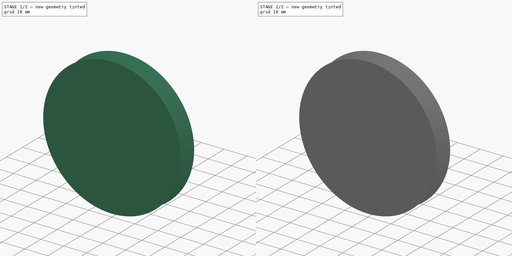
[diagram: build sequence overview — one tinted view per stage of 2, left to right]
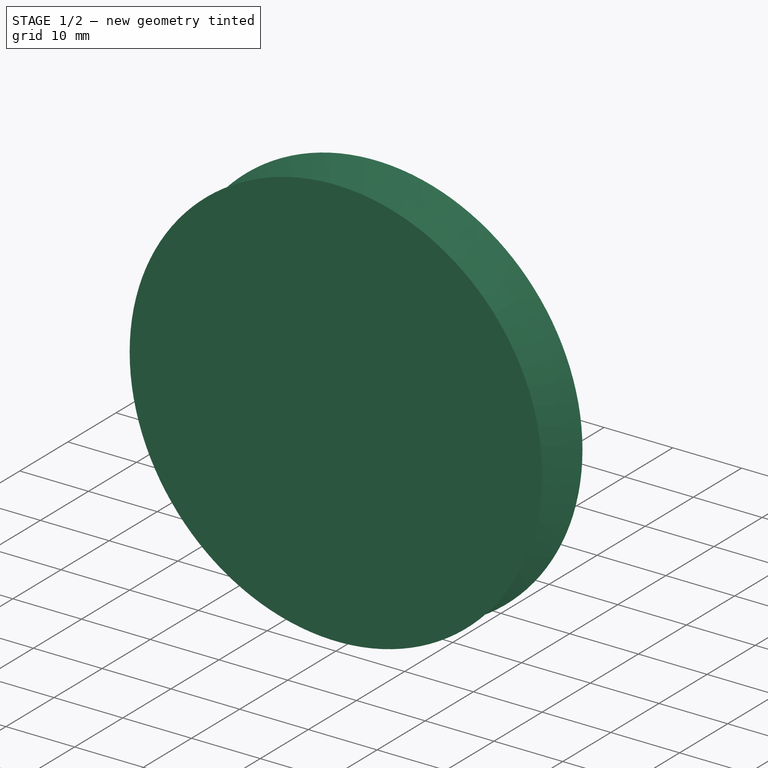
[diagram: stage 1 of 2 — iso view after this stage's code; geometry added in this stage tinted green]
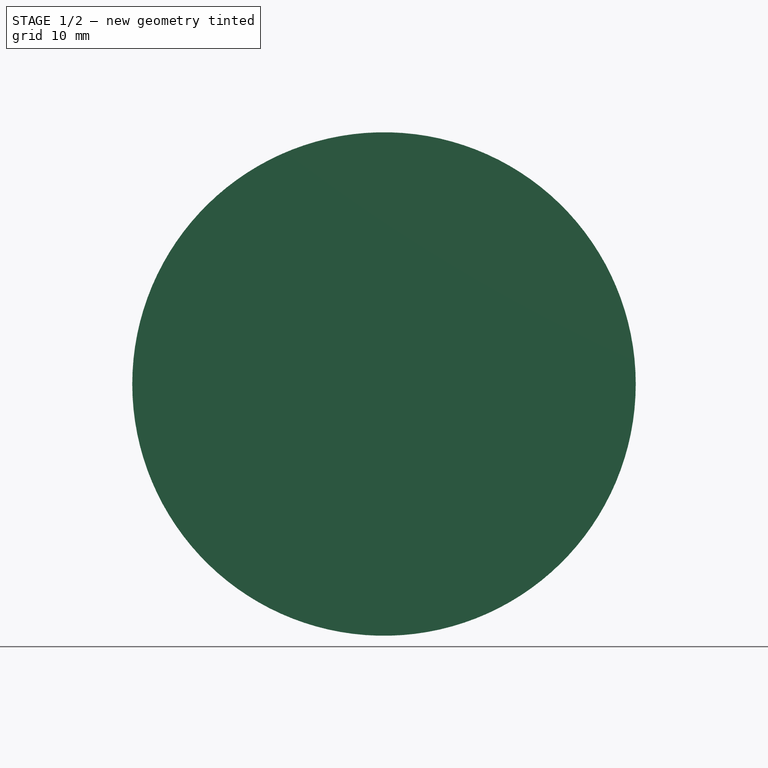
[diagram: stage 1 of 2 — front view after this stage's code; geometry added in this stage tinted green]
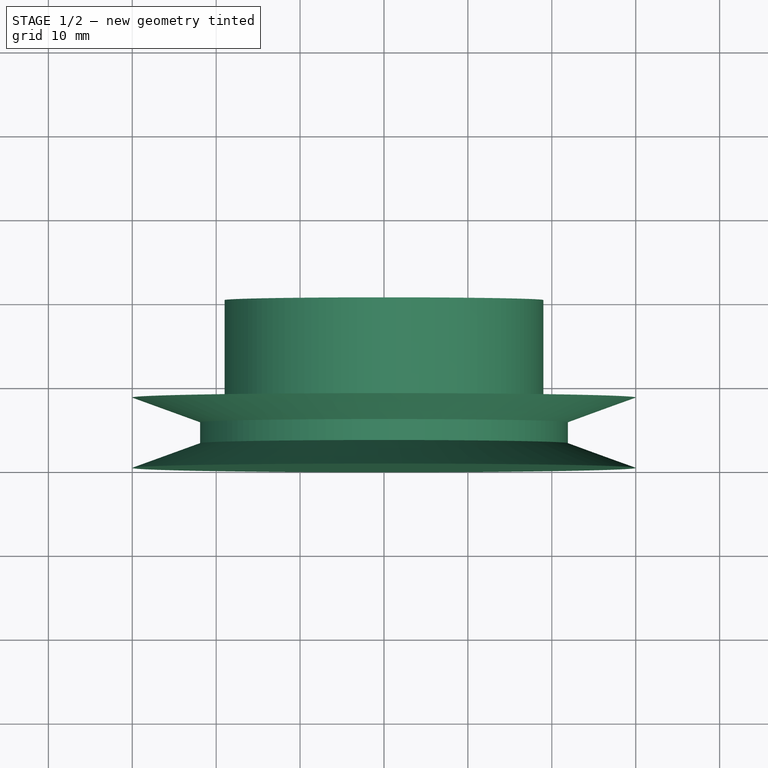
[diagram: stage 1 of 2 — top view after this stage's code; geometry added in this stage tinted green]
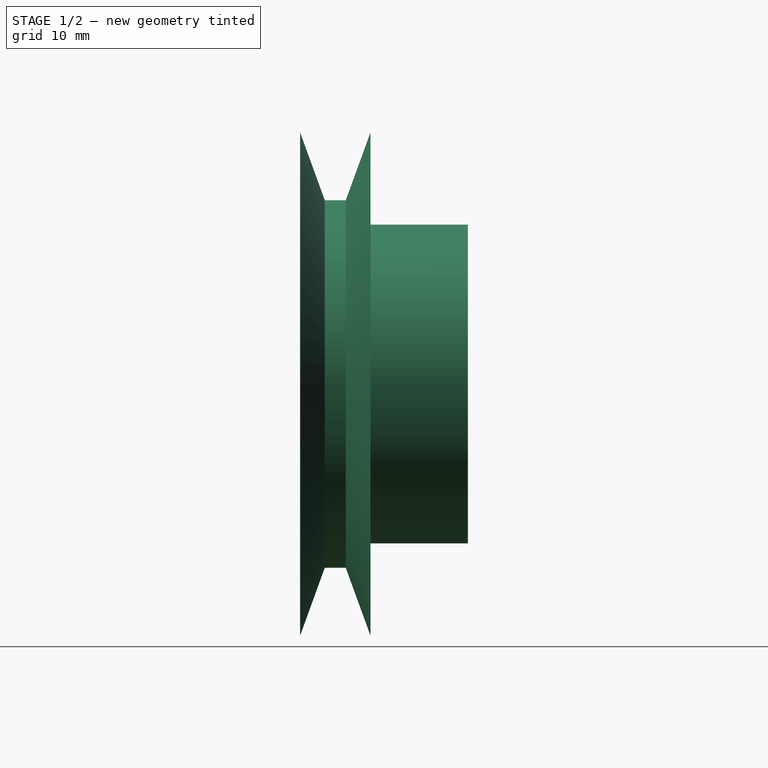
[diagram: stage 1 of 2 — right view after this stage's code; geometry added in this stage tinted green]
FCSTD DOCUMENT  (FreeCAD 0.18R16110 (Git))
Label: pulley60m
License: All rights reserved
LicenseURL: http://en.wikipedia.org/wiki/All_rights_reserved
objects: Sketcher::SketchObject×3, PartDesign::Revolution×1, PartDesign::Pocket×1, PartDesign::Body×1
note: 8 computed .brp shape members not serialized (recipe doc carries the construction recipe); baked Part::Feature solids carry a one-line shape summary decoded from their .brp

FEATURE [Sketcher::SketchObject] Sketch
  sketch-geometry (8):
    g0: LineSegment StartX=0 StartY=20 StartZ=0 EndX=19 EndY=20 EndZ=0
    g1: LineSegment StartX=19 StartY=20 StartZ=0 EndX=19 EndY=8.38959 EndZ=0
    g2: LineSegment StartX=19 StartY=8.38959 StartZ=0 EndX=60 EndY=8.38959 EndZ=0
    g3: LineSegment StartX=60 StartY=8.38959 StartZ=0 EndX=51.9092 EndY=5.44479 EndZ=0
    g4: LineSegment StartX=51.9092 StartY=5.44479 StartZ=0 EndX=51.9092 EndY=2.94479 EndZ=0
    g5: LineSegment StartX=51.9092 StartY=2.94479 StartZ=0 EndX=60 EndY=0 EndZ=0
    g6: LineSegment StartX=60 StartY=0 StartZ=0 EndX=0 EndY=0 EndZ=0
    g7: LineSegment StartX=0 StartY=20 StartZ=0 EndX=0 EndY=0 EndZ=0
  constraints (24):
    c: PointOnObject(g6,g-1)
    c: Horizontal(g0)
    c: Coincident(g0,g1)
    c: Vertical(g1)
    c: Coincident(g1,g2)
    c: Horizontal(g2)
    c: Coincident(g2,g3)
    c: Coincident(g3,g4)
    c: Vertical(g4)
    c: Coincident(g4,g5)
    c: PointOnObject(g5,g-1)
    c: Coincident(g5,g6)
    c: Distance(g4) = 2.5
    c: Equal(g5,g3)
    c: Distance(g5) = 8.61
    c: Angle(g5,g3) = 0.698132
    c: Angle(g2,g3) = 0.349066
    c: DistanceX(g5) = 60
    c: DistanceX(g6) = 0
    c: DistanceX(g0) = 0
    c: Coincident(g7,g0)
    c: Coincident(g7,g6)
    c: DistanceX(g0) = 19
    c: DistanceY(g0) = 20
FEATURE [Sketcher::SketchObject] CopySketch
  sketch-geometry (8):
    g0: LineSegment StartX=0 StartY=20 StartZ=0 EndX=19 EndY=20 EndZ=0
    g1: LineSegment StartX=19 StartY=20 StartZ=0 EndX=19 EndY=8.38959 EndZ=0
    g2: LineSegment StartX=19 StartY=8.38959 StartZ=0 EndX=30 EndY=8.38959 EndZ=0
    g3: LineSegment StartX=30 StartY=8.38959 StartZ=0 EndX=21.9092 EndY=5.44479 EndZ=0
    g4: LineSegment StartX=21.9092 StartY=5.44479 StartZ=0 EndX=21.9092 EndY=2.94479 EndZ=0
    g5: LineSegment StartX=21.9092 StartY=2.94479 StartZ=0 EndX=30 EndY=0 EndZ=0
    g6: LineSegment StartX=30 StartY=0 StartZ=0 EndX=0 EndY=0 EndZ=0
    g7: LineSegment StartX=0 StartY=20 StartZ=0 EndX=0 EndY=0 EndZ=0
  constraints (24):
    c: PointOnObject(g6,g-1)
    c: Horizontal(g0)
    c: Coincident(g0,g1)
    c: Vertical(g1)
    c: Coincident(g1,g2)
    c: Horizontal(g2)
    c: Coincident(g2,g3)
    c: Coincident(g3,g4)
    c: Vertical(g4)
    c: Coincident(g4,g5)
    c: PointOnObject(g5,g-1)
    c: Coincident(g5,g6)
    c: Distance(g4) = 2.5
    c: Equal(g5,g3)
    c: Distance(g5) = 8.61
    c: Angle(g5,g3) = 0.698132
    c: Angle(g2,g3) = 0.349066
    c: DistanceX(g5) = 30
    c: DistanceX(g6) = 0
    c: DistanceX(g0) = 0
    c: Coincident(g7,g0)
    c: Coincident(g7,g6)
    c: DistanceX(g0) = 19
    c: DistanceY(g0) = 20
FEATURE [PartDesign::Revolution] Revolution
  Angle = 360
  Axis = (0,1,0)
  Base = (0,0,0)
  Profile = -> CopySketch
  ReferenceAxis = -> CopySketch [V_Axis]
  Reversed = true
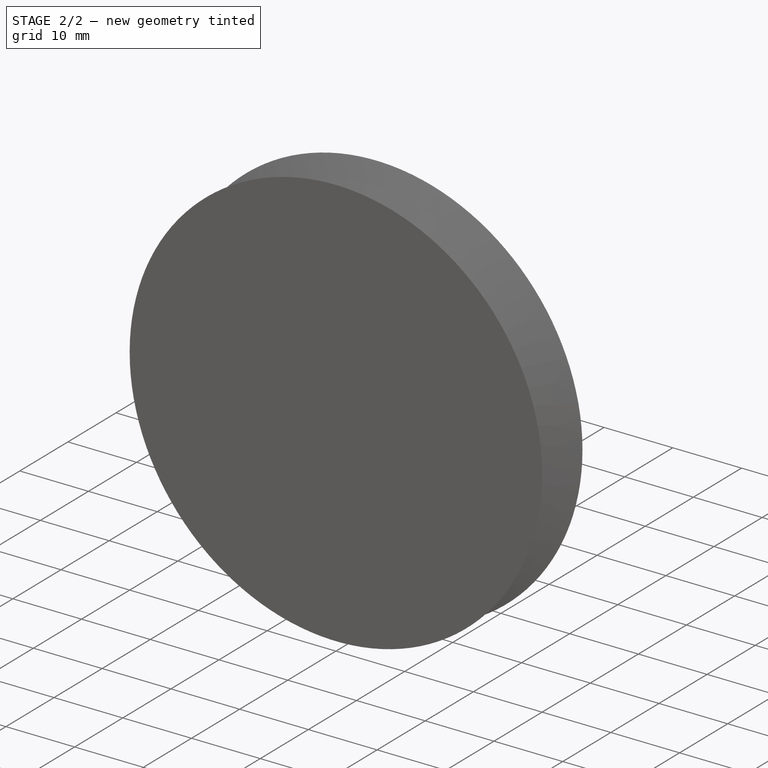
[diagram: stage 2 of 2 — iso view after this stage's code; geometry added in this stage tinted green]
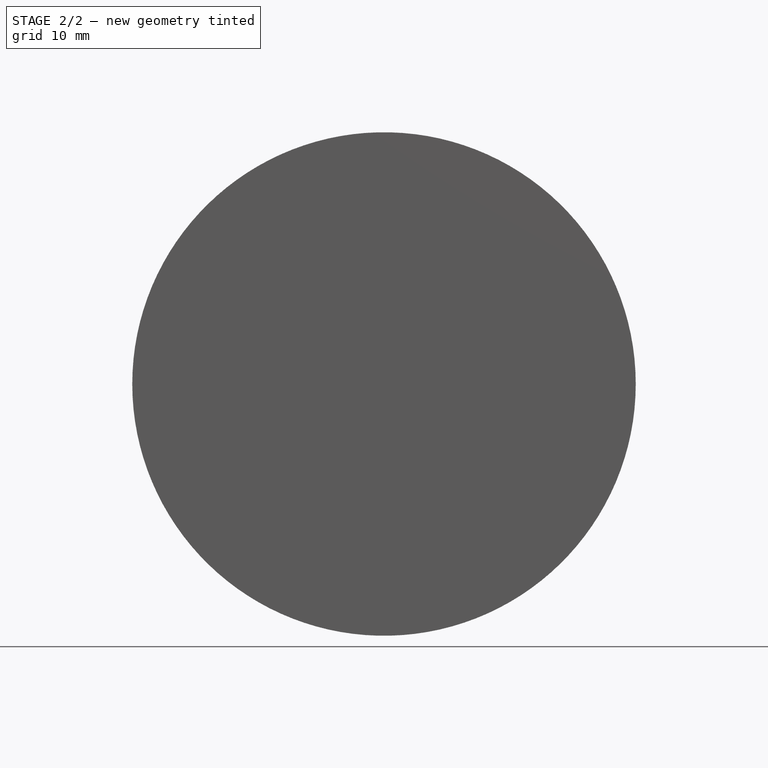
[diagram: stage 2 of 2 — front view after this stage's code; geometry added in this stage tinted green]
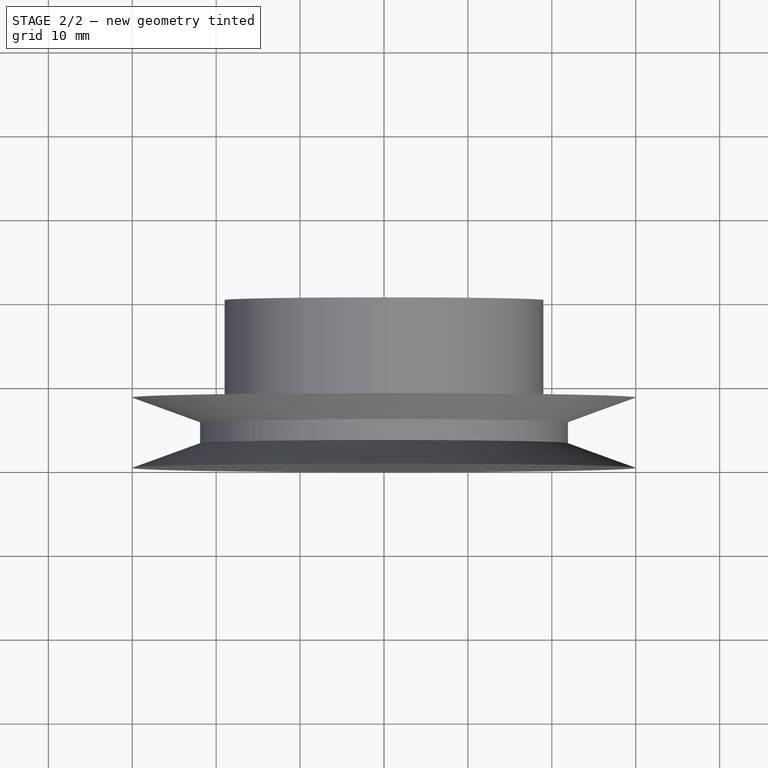
[diagram: stage 2 of 2 — top view after this stage's code; geometry added in this stage tinted green]
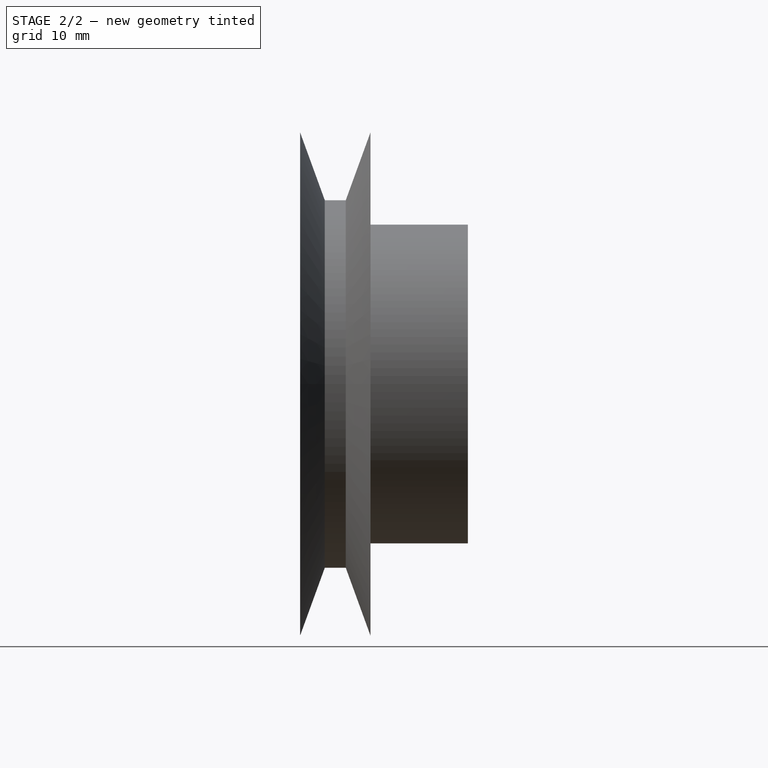
[diagram: stage 2 of 2 — right view after this stage's code; geometry added in this stage tinted green]
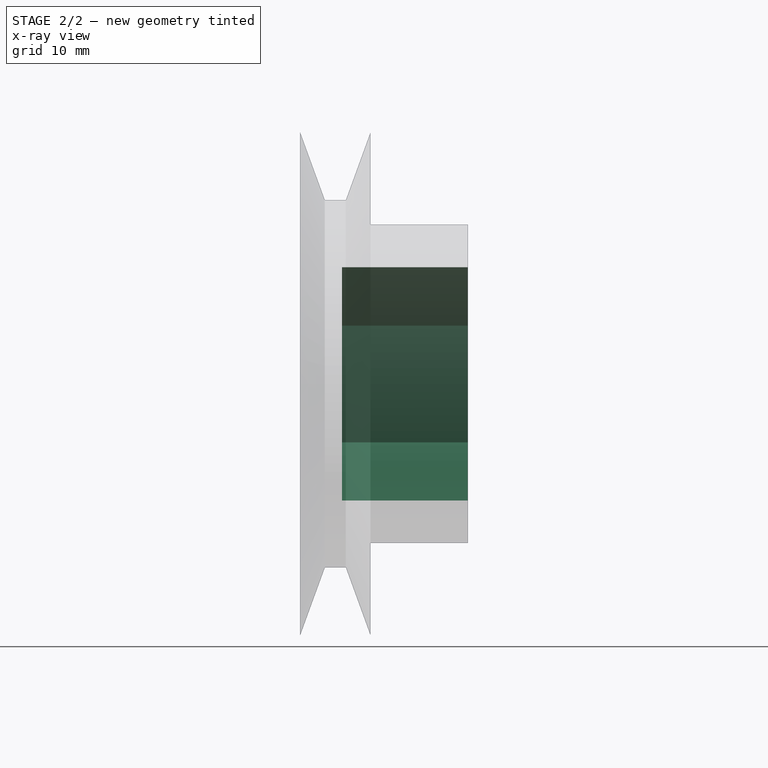
[diagram: stage 2 of 2 — x-ray composite at the right view; earlier geometry ghosted, this stage's added geometry solid]
FEATURE [Sketcher::SketchObject] Sketch002
  MapMode = 5
  Placement = pos=(0,20,0) rot=(0,0.707107,0.707107;3.14159rad)
  sketch-geometry (7):
    g0: LineSegment StartX=0 StartY=13.9141 StartZ=0 EndX=-12.05 EndY=6.95707 EndZ=0
    g1: LineSegment StartX=-12.05 StartY=6.95707 StartZ=0 EndX=-12.05 EndY=-6.95707 EndZ=0
    g2: LineSegment StartX=-12.05 StartY=-6.95707 StartZ=0 EndX=-1.8e-15 EndY=-13.9141 EndZ=0
    g3: LineSegment StartX=-1.8e-15 StartY=-13.9141 StartZ=0 EndX=12.05 EndY=-6.95707 EndZ=0
    g4: LineSegment StartX=12.05 StartY=-6.95707 StartZ=0 EndX=12.05 EndY=6.95707 EndZ=0
    g5: LineSegment StartX=12.05 StartY=6.95707 StartZ=0 EndX=0 EndY=13.9141 EndZ=0
    g6: Circle [constr] CenterX=0 CenterY=0 CenterZ=0 NormalX=0 NormalY=0 NormalZ=1 AngleXU=0 Radius=13.9141
  constraints (16):
    c: Coincident(g0,g1)
    c: Coincident(g1,g2)
    c: Coincident(g2,g3)
    c: Coincident(g3,g4)
    c: Coincident(g4,g5)
    c: Coincident(g5,g0)
    c: Equal(g0, g1-g5) x5
    c: PointOnObject(g0,g6)
    c: PointOnObject(g1,g6)
    c: PointOnObject(g2,g6)
    c: PointOnObject(g3,g6)
    c: PointOnObject(g4,g6)
    c: PointOnObject(g5,g6)
    c: Coincident(g6,g-1)
    c: PointOnObject(g5,g-2)
    c: DistanceX(g4) = 12.05
FEATURE [PartDesign::Pocket] Pocket
  BaseFeature = -> Revolution
  Length = 15
  Length2 = 100
  Profile = -> Sketch002
  Type = 0
FEATURE [PartDesign::Body] Body
  Group = -> [Revolution,Sketch002,Pocket]
  Origin = -> Origin
  Tip = -> Pocket
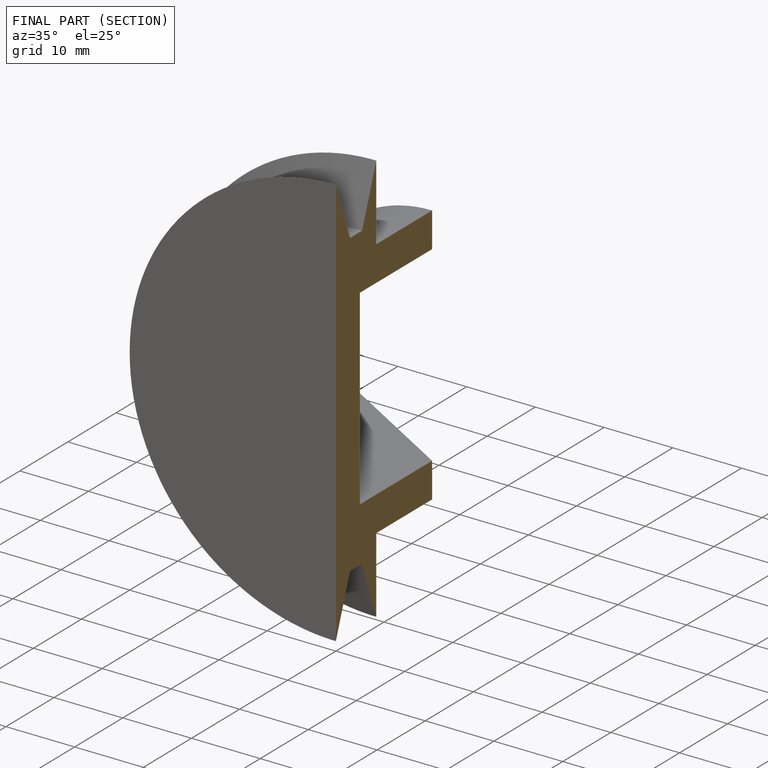
[diagram: finished part — half-section view (interior)]
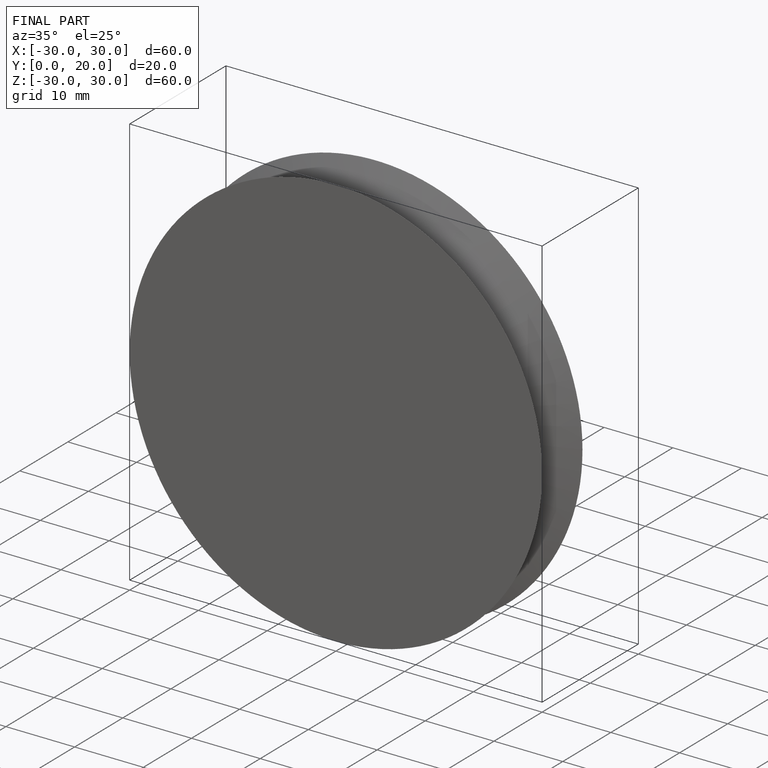
[diagram: finished part — iso view with bounding-box wireframe]
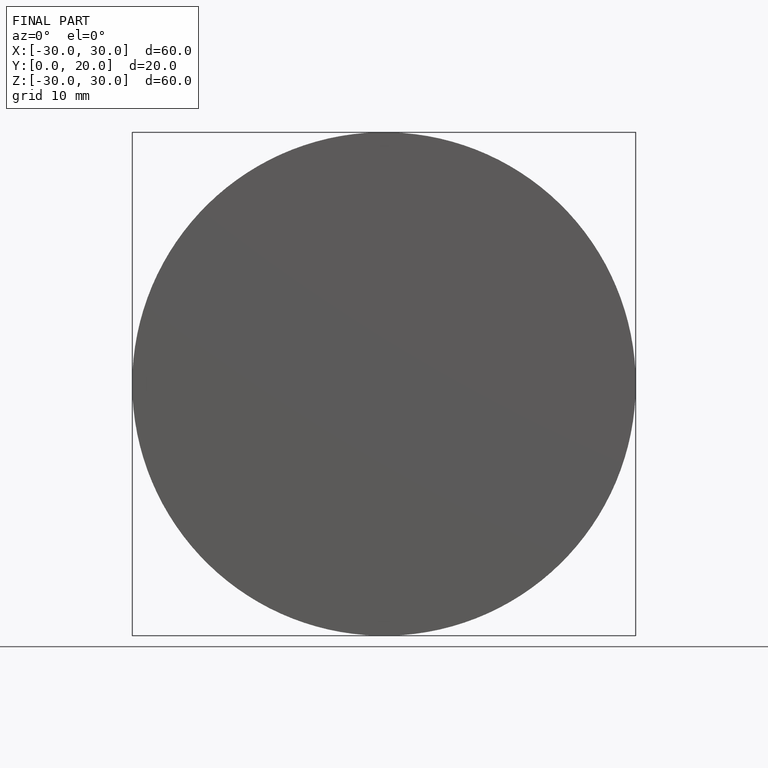
[diagram: finished part — front view with bounding-box wireframe]
